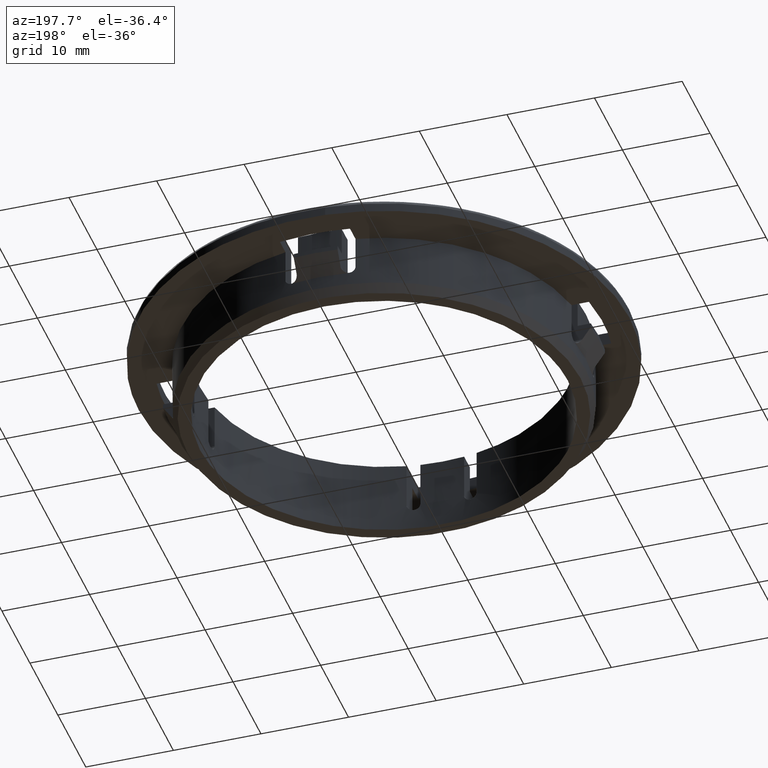
[diagram: clean part render]
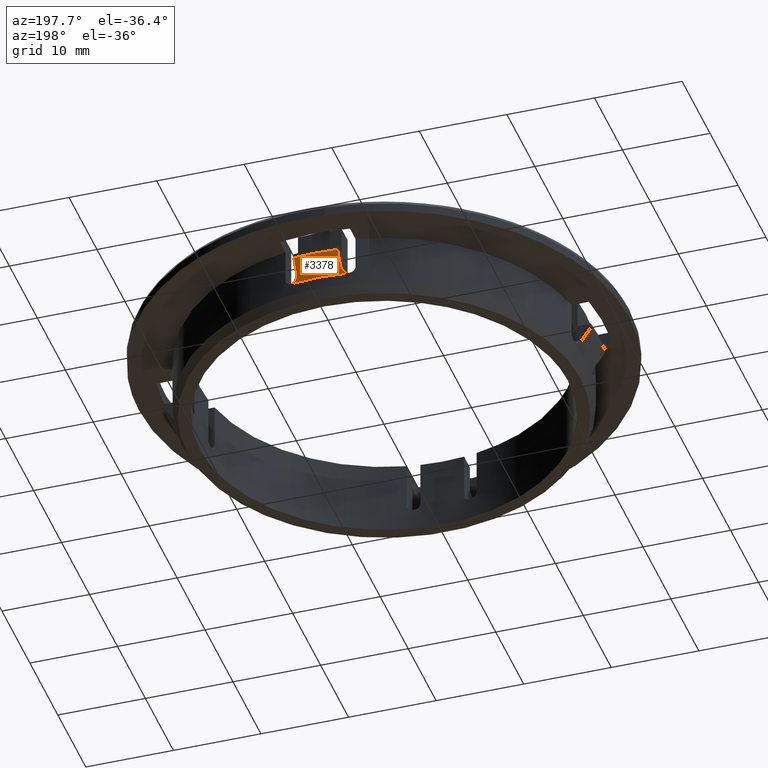
[diagram: same view with one face highlighted and labeled with its STEP entity id]
A machine part, auxiliary view. The second image highlights one B-rep face of the part: STEP entity #3378.
In plain terms, the highlighted face is a freeform B-spline surface patch.
Its self-contained STEP definition (entity closure, byte-faithful):
#1302=CARTESIAN_POINT('',(-3.250000000000000,22.819728306883899,2.500000000000000));
#1303=VERTEX_POINT('',#1302);
#1331=CARTESIAN_POINT('',(3.250000000000000,22.819728306883899,2.500000000000000));
#1332=VERTEX_POINT('',#1331);
#1333=CARTESIAN_POINT('',(-3.250000000000005,22.819728306883938,2.500000000000000));
#1334=CARTESIAN_POINT('',(2.168404E-015,23.282595342720363,2.500000000000000));
#1335=CARTESIAN_POINT('',(3.250000000000007,22.819728306883938,2.500000000000000));
#1343=(BOUNDED_CURVE()B_SPLINE_CURVE(2,(#1333,#1334,#1335),.UNSPECIFIED.,.F.,.U.)CURVE()GEOMETRIC_REPRESENTATION_ITEM()QUASI_UNIFORM_CURVE()RATIONAL_B_SPLINE_CURVE((1.0,0.990009904853967,1.0))REPRESENTATION_ITEM(''));
#1344=EDGE_CURVE('',#1303,#1332,#1343,.T.);
#2607=CARTESIAN_POINT('',(-2.500000000000000,23.428355819496950,3.250000000000000));
#2608=VERTEX_POINT('',#2607);
#2614=CARTESIAN_POINT('',(-3.250000000000000,22.819728306883899,2.500000000000000));
#2615=CARTESIAN_POINT('',(-3.194209167727566,22.827674072164150,2.500000000000000));
#2616=CARTESIAN_POINT('',(-3.140300889540110,22.839371210220691,2.506138890184645));
#2617=CARTESIAN_POINT('',(-3.061930420625511,22.861884664890109,2.523470135027638));
#2618=CARTESIAN_POINT('',(-3.036130350495851,22.870262572825911,2.530649752895773));
#2619=CARTESIAN_POINT('',(-2.985795840780706,22.888525972718671,2.547574795982402));
#2620=CARTESIAN_POINT('',(-2.961516486517351,22.898310031613210,2.557220846144451));
#2621=CARTESIAN_POINT('',(-2.914589713281939,22.919082009350220,2.578683656439223));
#2622=CARTESIAN_POINT('',(-2.891942964013745,22.930070419448590,2.590501310001472));
#2623=CARTESIAN_POINT('',(-2.848204255985285,22.953200094223781,2.616199129678179));
#2624=CARTESIAN_POINT('',(-2.827020895808603,22.965401083860481,2.630150123167499));
#2625=CARTESIAN_POINT('',(-2.766503994597939,23.003237589630569,2.674472083798271));
#2626=CARTESIAN_POINT('',(-2.730282082199216,23.029975809970420,2.707131345292400));
#2627=CARTESIAN_POINT('',(-2.665199905242938,23.086211801146298,2.777959811542115));
#2628=CARTESIAN_POINT('',(-2.636290701650712,23.115867844238910,2.816353902341811));
#2629=CARTESIAN_POINT('',(-2.587164413266633,23.176039518802341,2.895970303711136));
#2630=CARTESIAN_POINT('',(-2.566673141581937,23.206758185978732,2.937441578016508));
#2631=CARTESIAN_POINT('',(-2.541806291361684,23.253782522057438,3.002020642608572));
#2632=CARTESIAN_POINT('',(-2.534483202608925,23.269671213268140,3.024022682630884));
#2633=CARTESIAN_POINT('',(-2.521969936910062,23.301420174540802,3.068334751393168));
#2634=CARTESIAN_POINT('',(-2.516765435051588,23.317290736040651,3.090657436063498));
#2635=CARTESIAN_POINT('',(-2.504246367947715,23.364896331687920,3.158111807357763));
#2636=CARTESIAN_POINT('',(-2.500000000000000,23.396625803166319,3.203725353837854));
#2637=CARTESIAN_POINT('',(-2.500000000000000,23.428355819496950,3.250000000000000));
#2638=B_SPLINE_CURVE_WITH_KNOTS('',3,(#2614,#2615,#2616,#2617,#2618,#2619,#2620,#2621,#2622,#2623,#2624,#2625,#2626,#2627,#2628,#2629,#2630,#2631,#2632,#2633,#2634,#2635,#2636,#2637),.UNSPECIFIED.,.F.,.U.,(4,2,2,2,2,2,2,2,2,2,2,4),(0.0,0.125000000000002,0.187500000000002,0.250000000000001,0.312500000000001,0.375000000000001,0.500000000000002,0.625000000000002,0.750000000000003,0.812500000000001,0.874999999999999,1.0),.UNSPECIFIED.);
#2639=EDGE_CURVE('',#1303,#2608,#2638,.T.);
#2663=CARTESIAN_POINT('',(2.500000000000000,23.428355819496950,3.250000000000000));
#2664=VERTEX_POINT('',#2663);
#2677=CARTESIAN_POINT('',(2.500000000000000,23.428355819496950,3.250000000000000));
#2678=CARTESIAN_POINT('',(2.500000000000000,23.396573763469330,3.203649459815634));
#2679=CARTESIAN_POINT('',(2.504259337954732,23.364905156759431,3.158126760407070));
#2680=CARTESIAN_POINT('',(2.520832694110702,23.301766563596608,3.068658148230590));
#2681=CARTESIAN_POINT('',(2.533147871979507,23.270296742546130,3.024712365485682));
#2682=CARTESIAN_POINT('',(2.557930729053509,23.223222781848019,2.960046560393187));
#2683=CARTESIAN_POINT('',(2.567300538775449,23.207484964310598,2.938610167212583));
#2684=CARTESIAN_POINT('',(2.587931806885491,23.176550627846989,2.896859956977750));
#2685=CARTESIAN_POINT('',(2.599200297350305,23.161321159500911,2.876499121727228));
#2686=CARTESIAN_POINT('',(2.635869063517399,23.116337889894261,2.816969020730906));
#2687=CARTESIAN_POINT('',(2.664104203698094,23.087282735966870,2.779336350031751));
#2688=CARTESIAN_POINT('',(2.728795870108977,23.031140698369320,2.708571878722374));
#2689=CARTESIAN_POINT('',(2.765680182256886,23.003827249368740,2.675187211395595));
#2690=CARTESIAN_POINT('',(2.845854230574675,22.953553456336451,2.616247978419391));
#2691=CARTESIAN_POINT('',(2.889290152432295,22.930366147202530,2.590384146437527));
#2692=CARTESIAN_POINT('',(2.960159519591807,22.898870024070540,2.557779902763838));
#2693=CARTESIAN_POINT('',(2.984777250744819,22.888926022108571,2.547963624197497));
#2694=CARTESIAN_POINT('',(3.034840092812626,22.870701639858051,2.531039365464622));
#2695=CARTESIAN_POINT('',(3.060425940770312,22.862353855430381,2.523859274466863));
#2696=CARTESIAN_POINT('',(3.138918256595630,22.839697420230792,2.506336396531034));
#2697=CARTESIAN_POINT('',(3.194074077324784,22.827693311823928,2.499999999999999));
#2698=CARTESIAN_POINT('',(3.250000000000000,22.819728306883899,2.500000000000000));
#2699=B_SPLINE_CURVE_WITH_KNOTS('',3,(#2677,#2678,#2679,#2680,#2681,#2682,#2683,#2684,#2685,#2686,#2687,#2688,#2689,#2690,#2691,#2692,#2693,#2694,#2695,#2696,#2697,#2698),.UNSPECIFIED.,.F.,.U.,(4,2,2,2,2,2,2,2,2,2,4),(0.0,0.124999999999996,0.249999999999992,0.312499999999992,0.374999999999992,0.499999999999993,0.624999999999994,0.749999999999995,0.812499999999997,0.874999999999999,1.0),.UNSPECIFIED.);
#2700=EDGE_CURVE('',#2664,#1332,#2699,.T.);
#2950=CARTESIAN_POINT('',(-2.500000000000000,24.422377034187299,4.700000000000000));
#2951=VERTEX_POINT('',#2950);
#2952=CARTESIAN_POINT('',(-2.500000000000000,24.422377034187310,4.699999999999994));
#2953=CARTESIAN_POINT('',(-2.500000000000000,24.091086202854619,4.216632692472293));
#2954=CARTESIAN_POINT('',(-2.500000000000000,23.759747893853302,3.733297922761308));
#2955=CARTESIAN_POINT('',(-2.500000000000000,23.428355819496979,3.249999999999981));
#2956=QUASI_UNIFORM_CURVE('',3,(#2952,#2953,#2954,#2955),.UNSPECIFIED.,.F.,.U.);
#2957=EDGE_CURVE('',#2951,#2608,#2956,.T.);
#2997=CARTESIAN_POINT('',(2.500000000000000,24.422377034187299,4.700000000000000));
#2998=VERTEX_POINT('',#2997);
#2999=CARTESIAN_POINT('',(2.500000000000000,23.428355819496979,3.249999999999979));
#3000=CARTESIAN_POINT('',(2.500000000000000,23.759747893853291,3.733297922761306));
#3001=CARTESIAN_POINT('',(2.500000000000000,24.091086202854619,4.216632692472292));
#3002=CARTESIAN_POINT('',(2.500000000000000,24.422377034187310,4.699999999999992));
#3003=QUASI_UNIFORM_CURVE('',3,(#2999,#3000,#3001,#3002),.UNSPECIFIED.,.F.,.U.);
#3004=EDGE_CURVE('',#2664,#2998,#3003,.T.);
#3344=CARTESIAN_POINT('',(-3.443402225893723,22.753420344218799,2.444999999999999));
#3345=CARTESIAN_POINT('',(-3.679212620043397,24.311615602175010,4.756375000000000));
#3346=CARTESIAN_POINT('',(0.062602304485680,23.284003598132504,2.444999999999999));
#3347=CARTESIAN_POINT('',(0.066889423191836,24.878534154153446,4.756375000000000));
#3348=CARTESIAN_POINT('',(3.565703072780255,22.734575383032013,2.444999999999999));
#3349=CARTESIAN_POINT('',(3.809888849478123,24.291480104061751,4.756375000000000));
#3357=(BOUNDED_SURFACE()B_SPLINE_SURFACE(1,2,((#3344,#3346,#3348),(#3345,#3347,#3349)),.UNSPECIFIED.,.F.,.F.,.U.)B_SPLINE_SURFACE_WITH_KNOTS((2,2),(3,3),(0.0,2.797504851565277),(0.0,7.533056494296458),.UNSPECIFIED.)GEOMETRIC_REPRESENTATION_ITEM()RATIONAL_B_SPLINE_SURFACE(((1.0,0.986698457254730,0.996689195045239),(1.0,0.986698457254730,0.996689195045239)))REPRESENTATION_ITEM('')SURFACE());
#3358=ORIENTED_EDGE('',*,*,#2957,.F.);
#3359=CARTESIAN_POINT('',(-2.500000000000003,24.422377034187310,4.700000000000000));
#3360=CARTESIAN_POINT('',(-3.035766E-015,24.678289879658948,4.700000000000000));
#3361=CARTESIAN_POINT('',(2.499999999999999,24.422377034187310,4.700000000000000));
#3369=(BOUNDED_CURVE()B_SPLINE_CURVE(2,(#3359,#3360,#3361),.UNSPECIFIED.,.F.,.U.)CURVE()GEOMETRIC_REPRESENTATION_ITEM()QUASI_UNIFORM_CURVE()RATIONAL_B_SPLINE_CURVE((1.0,0.994801508520868,1.0))REPRESENTATION_ITEM(''));
#3370=EDGE_CURVE('',#2951,#2998,#3369,.T.);
#3371=ORIENTED_EDGE('',*,*,#3370,.T.);
#3372=ORIENTED_EDGE('',*,*,#3004,.F.);
#3373=ORIENTED_EDGE('',*,*,#2700,.T.);
#3374=ORIENTED_EDGE('',*,*,#1344,.F.);
#3375=ORIENTED_EDGE('',*,*,#2639,.T.);
#3376=EDGE_LOOP('',(#3358,#3371,#3372,#3373,#3374,#3375));
#3377=FACE_OUTER_BOUND('',#3376,.T.);
#3378=ADVANCED_FACE('',(#3377),#3357,.T.);